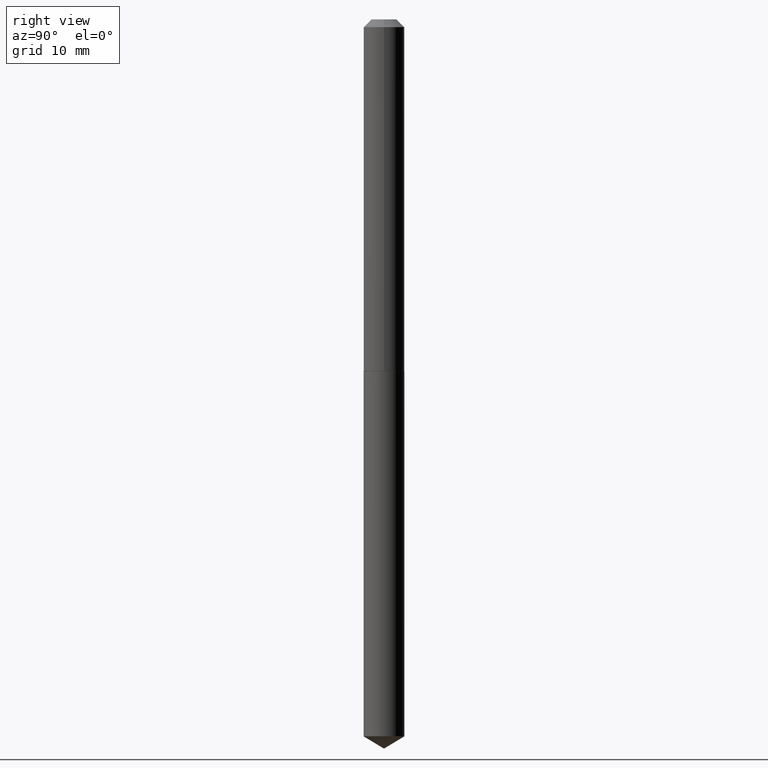
[diagram: clean part render]
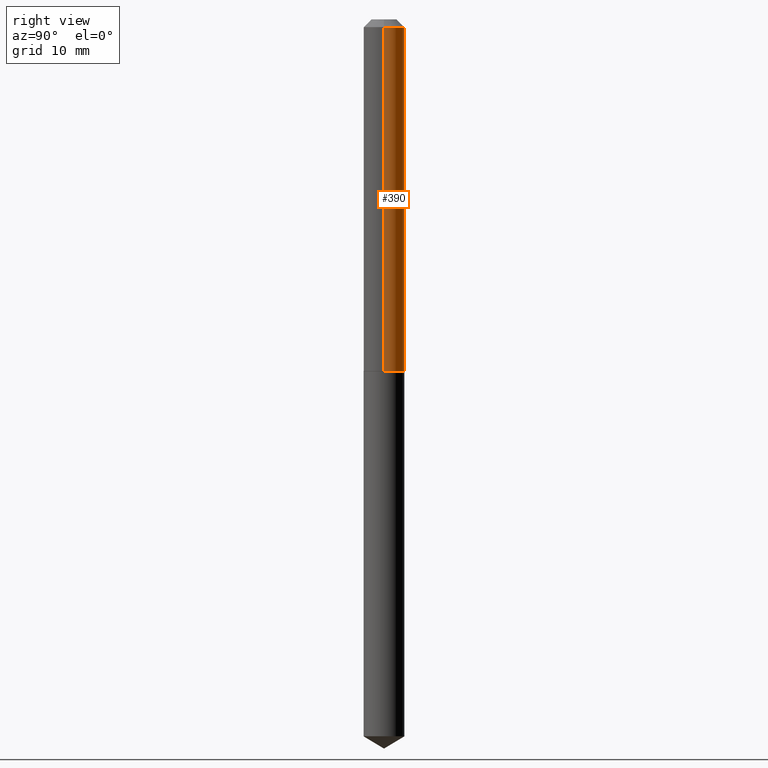
[diagram: same view with one face highlighted and labeled with its STEP entity id]
A machine part, right view. The second image highlights one B-rep face of the part: STEP entity #390.
In plain terms, the highlighted cylindrical surface (edge-blend (fillet) strip) has radius 2.1006 mm, axis along (-0, 0, 1).
Its self-contained STEP definition (entity closure, byte-faithful):
#6 = DIRECTION ( 'NONE',  ( -2.445468806185136597E-29, 3.491481338843145583E-15, 1.000000000000000000 ) ) ;
#9 = EDGE_CURVE ( 'NONE', #344, #64, #22, .T. ) ;
#11 = CARTESIAN_POINT ( 'NONE',  ( 7.642090019328600035E-31, -1.091087918388489897E-16, -0.03125000000000020123 ) ) ;
#15 = ORIENTED_EDGE ( 'NONE', *, *, #161, .T. ) ;
#22 = LINE ( 'NONE', #174, #325 ) ;
#36 = DIRECTION ( 'NONE',  ( -2.445468806185136597E-29, 3.491481338843145583E-15, 1.000000000000000000 ) ) ;
#41 = DIRECTION ( 'NONE',  ( -2.445468806185136597E-29, 3.491481338843145583E-15, 1.000000000000000000 ) ) ;
#43 = CARTESIAN_POINT ( 'NONE',  ( 0.08270000000000014839, -5.552153625028367676E-15, -1.424799999999999844 ) ) ;
#51 = DIRECTION ( 'NONE',  ( -2.445468806185136877E-29, 3.491481338843145188E-15, 1.000000000000000000 ) ) ;
#64 = VERTEX_POINT ( 'NONE', #204 ) ;
#74 = VERTEX_POINT ( 'NONE', #114 ) ;
#88 = AXIS2_PLACEMENT_3D ( 'NONE', #11, #36, #155 ) ;
#90 = DIRECTION ( 'NONE',  ( -2.445468806185136877E-29, 3.491481338843145188E-15, 1.000000000000000000 ) ) ;
#104 = ORIENTED_EDGE ( 'NONE', *, *, #369, .F. ) ;
#114 = CARTESIAN_POINT ( 'NONE',  ( -0.08269999999999999574, -1.954266859237676647E-15, -0.03125000000000020123 ) ) ;
#123 = FACE_OUTER_BOUND ( 'NONE', #290, .T. ) ;
#134 = VERTEX_POINT ( 'NONE', #177 ) ;
#155 = DIRECTION ( 'NONE',  ( 1.000000000000000000, -6.982962677686267499E-15, 0.000000000000000000 ) ) ;
#161 = EDGE_CURVE ( 'NONE', #134, #74, #326, .T. ) ;
#164 = DIRECTION ( 'NONE',  ( 1.000000000000000000, -6.982962677686260400E-15, 0.000000000000000000 ) ) ;
#173 = VECTOR ( 'NONE', #90, 39.37007874015748143 ) ;
#174 = CARTESIAN_POINT ( 'NONE',  ( 0.08270000000000007900, -5.774910134446548770E-16, 4.032598193583242774E-30 ) ) ;
#177 = CARTESIAN_POINT ( 'NONE',  ( -0.08270000000000014839, -4.387043769110109384E-15, -1.424799999999999844 ) ) ;
#204 = CARTESIAN_POINT ( 'NONE',  ( 0.08269999999999999574, -6.865998052835032874E-16, -0.03125000000000020123 ) ) ;
#218 = CYLINDRICAL_SURFACE ( 'NONE', #225, 0.08270000000000007900 ) ;
#224 = ORIENTED_EDGE ( 'NONE', *, *, #9, .F. ) ;
#225 = AXIS2_PLACEMENT_3D ( 'NONE', #240, #41, #365 ) ;
#236 = CARTESIAN_POINT ( 'NONE',  ( -0.08270000000000007900, 5.876188424736034151E-16, -4.067959319640811108E-30 ) ) ;
#237 = CIRCLE ( 'NONE', #388, 0.08270000000000014839 ) ;
#240 = CARTESIAN_POINT ( 'NONE',  ( 0.000000000000000000, 0.000000000000000000, 0.000000000000000000 ) ) ;
#282 = CIRCLE ( 'NONE', #88, 0.08269999999999999574 ) ;
#290 = EDGE_LOOP ( 'NONE', ( #368, #15, #104, #224 ) ) ;
#325 = VECTOR ( 'NONE', #51, 39.37007874015748143 ) ;
#326 = LINE ( 'NONE', #236, #173 ) ;
#337 = CARTESIAN_POINT ( 'NONE',  ( 3.484303955052581857E-29, -4.974662611583712996E-15, -1.424799999999999844 ) ) ;
#344 = VERTEX_POINT ( 'NONE', #43 ) ;
#357 = EDGE_CURVE ( 'NONE', #344, #134, #237, .T. ) ;
#365 = DIRECTION ( 'NONE',  ( 1.000000000000000000, -6.982962677686267499E-15, 4.876176775795935793E-29 ) ) ;
#368 = ORIENTED_EDGE ( 'NONE', *, *, #357, .T. ) ;
#369 = EDGE_CURVE ( 'NONE', #64, #74, #282, .T. ) ;
#388 = AXIS2_PLACEMENT_3D ( 'NONE', #337, #6, #164 ) ;
#390 = ADVANCED_FACE ( 'NONE', ( #123 ), #218, .T. ) ;